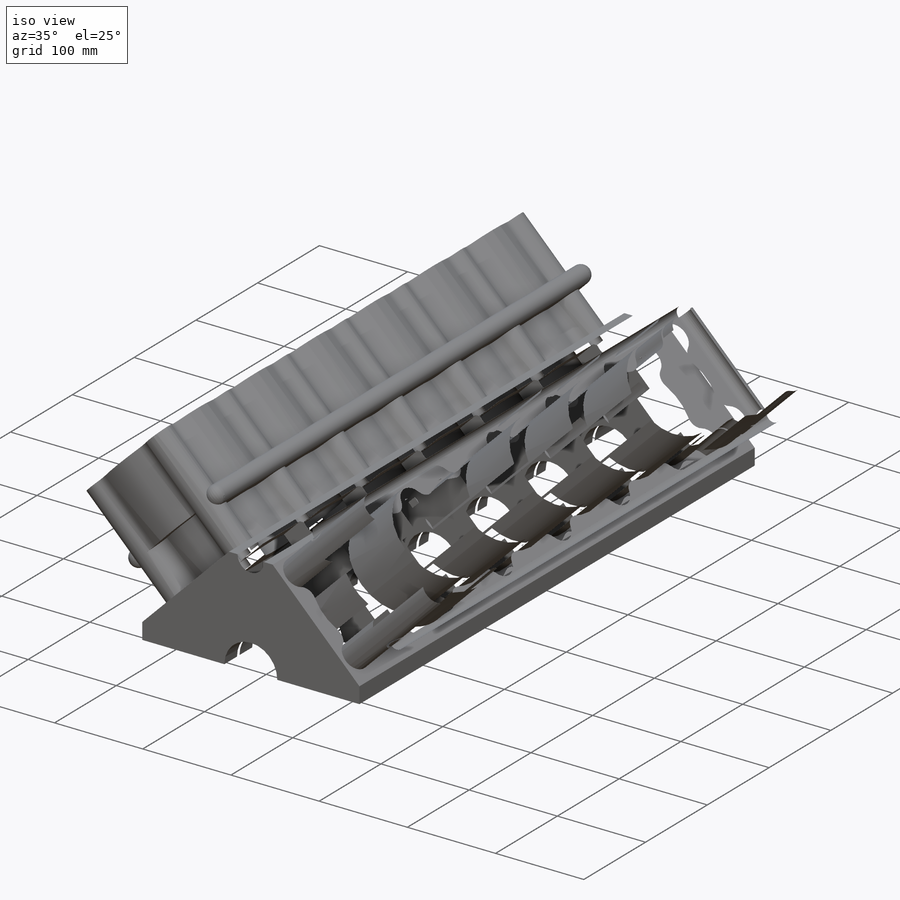
[diagram: iso view]
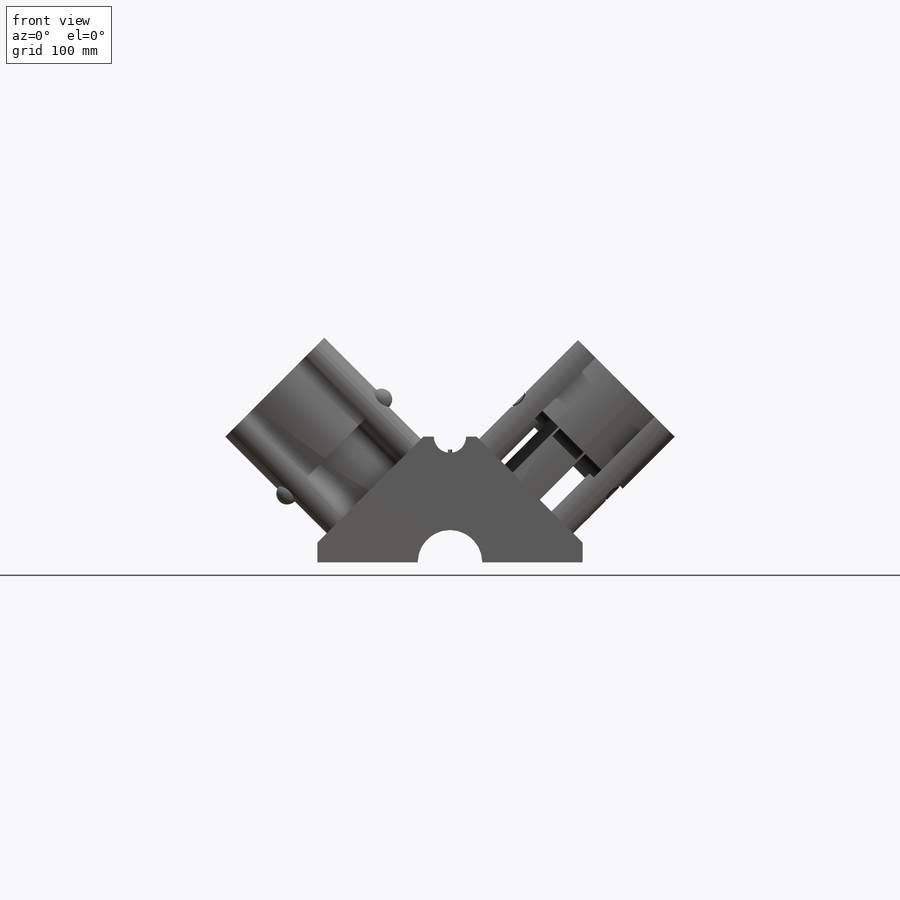
[diagram: front view]
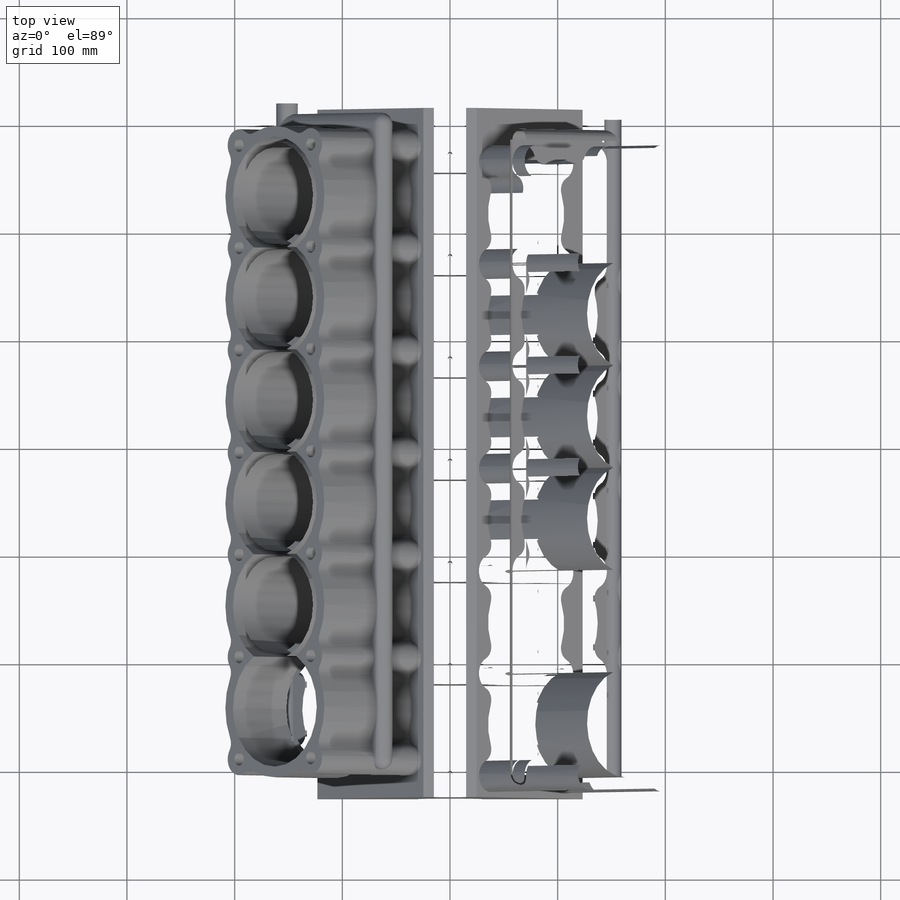
[diagram: top view]
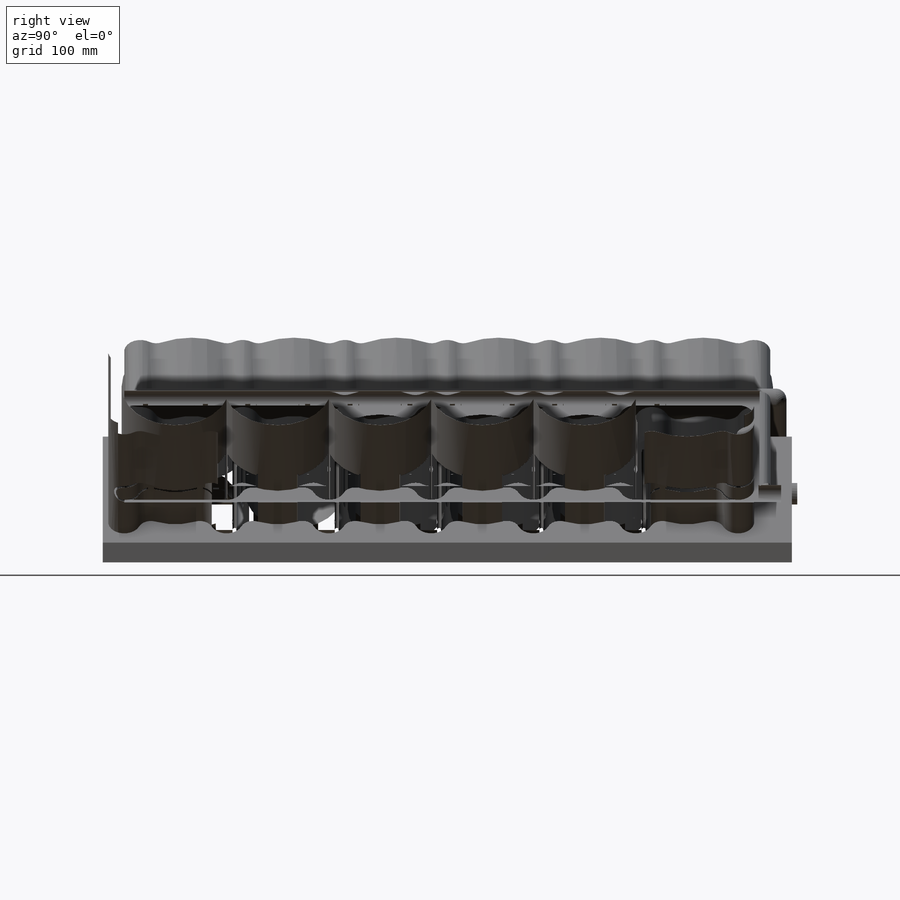
[diagram: right view]
SOLIDWORKS PART (.sldprt)
format: sldprt  version: not decoded by parser v0  size: 5,576,192 bytes
history: native  units: mm
features: sketch x39, extrude x15, cut_extrude x13, mirror x5, plane x4, sweep x2, material x1, pattern_linear x1, move_body x1, cut_revolve x1 (+11 scaffold rows collapsed)
feature tree (93):
  scaffold x11  (default folders/planes/origin — collapsed)
  material  "Material <not specified>"
  sketch  "Sketch2"
  plane  "Plane1"
  sketch  "Sketch3"  dims[c1.D1=90.0mm c1.D3=100.0mm c1.D4=130.0mm c1.D5=110.0mm c2.D4=12.0mm c2.D5=24.0mm c2.D7=10.0mm c2.D8=10.0mm c2.D2=24.0mm c3.D5=30.0mm c3.D6=130.0mm c3.D7=110.0mm c3.D8=100.0mm c3.D9=90.0mm c3.D2=142.5mm c3.D1=47.0mm c3.D3=47.0mm c4.D1=142.5mm c4.D2=47.5mm]
  extrude  "Boss-Extrude1"  Depth=130mm
  sketch  "Sketch4"
  cut_extrude  "Cut-Extrude1"  Depth=60mm
  sketch  "Sketch5"  dims[c1.D1=~14.635716mm c1.D2=~14.045971mm c2.D1=24.0mm c2.D2=55.0mm c3.D1=100.0mm c3.D2=30.0mm c3.D3=12.0mm c3.D4=~11.809196mm]
  extrude  "Boss-Extrude2"  Depth=60mm
  pattern_linear  "LPattern2"  Count1=6 Count2=1 Spacing1=95mm Spacing2=10mm
  sketch  "Sketch6"  dims[D1=45.0mm]
  cut_extrude  "Cut-Extrude3"  Depth=70mm
  sketch  "Sketch8"  dims[c1.D1=16.0mm c1.D2=10.0mm c2.D1=2.0mm c2.D3=15.0mm]
  extrude  "Boss-Extrude3"  Depth=190mm
  sketch  "Sketch9"
  sketch  "Sketch11"
  plane  "Plane2"
  mirror  "Mirror1"
  cut_extrude  "Cut-Extrude10"  Depth=10mm
  sketch  "Sketch12"
  extrude  "Boss-Extrude4"  [1 undecoded]
  sketch  "Sketch15"
  cut_extrude  "Cut-Extrude11"  Depth=337mm
  sketch  "3DSketch2"
  plane  "Plane3"
  sketch  "Sketch16"  dims[D1=10.0mm]
  sketch  "Sketch17"  dims[D1=10.0mm D2=8.0mm]
  sweep  "Sweep1"
  mirror  "Mirror2"
  plane  "Plane4"  Offset=420mm
  sketch  "Sketch18"  dims[D1=20.0mm]
  extrude  "Boss-Extrude6"  Depth=21mm
  sketch  "Sketch19"  dims[D1=~7.272815mm]
  cut_extrude  "Cut-Extrude12"  Depth=23mm
  sketch  "Sketch20"  dims[D1=10.0mm]
  sketch  "Sketch21"  dims[D1=0.0mm]
  sweep  "Sweep2"
  mirror  "Mirror3"
  mirror  "Mirror4"
  sketch  "Sketch22"
  sketch  "Sketch23"  dims[D1=0.0mm]
  extrude  "Boss-Extrude7"  Depth=10mm
  sketch  "Sketch24"  dims[D1=640.0mm]
  extrude  "Boss-Extrude8"  Depth=10mm
  sketch  "Sketch25"  dims[D1=10.0mm]
  sketch  "Sketch26"  dims[D1=10.0mm]
  extrude  "Boss-Extrude9"  Depth=225mm
  mirror  "Mirror6"
  move_body  "Body-Move/Copy1"
  sketch  "Sketch27"  dims[c1.D1=20.0mm c2.D1=5.0 c2.D2=3.0]
  extrude  "Boss-Extrude10"  [1 undecoded]
  sketch  "Sketch28"  dims[D1=0.0mm]
  extrude  "Boss-Extrude11"  Depth=215mm
  sketch  "Sketch29"
  cut_extrude  "Cut-Extrude13"  Depth=1097mm
  sketch  "Sketch30"  dims[D1=~123.137085mm D2=15.0mm D3=6.0]
  extrude  "Boss-Extrude13"  [1 undecoded]
  sketch  "Sketch31"  dims[D1=6.0]
  extrude  "Boss-Extrude14"  [1 undecoded]
  sketch  "Sketch33"
  cut_extrude  "Cut-Extrude14"  Depth=143mm
  sketch  "Sketch34"
  cut_extrude  "Cut-Extrude15"  Depth=744mm
  sketch  "Sketch35"  dims[D1=60.0mm]
  cut_extrude  "Cut-Extrude16"  Depth=744mm
  sketch  "Sketch36"
  cut_extrude  "Cut-Extrude17"  Depth=160mm
  sketch  "Sketch38"  dims[D1=30.0mm D2=26.0mm]
  extrude  "Boss-Extrude17"  Depth=640mm
  sketch  "Sketch45"
  cut_extrude  "Cut-Extrude20"  Depth=160mm
  sketch  "Sketch40"  dims[D1=24.0mm]
  cut_extrude  "Cut-Extrude18"  [1 undecoded]
  sketch  "Sketch42"  dims[c1.D1=~3.278894mm c1.D2=~5.181527mm c2.D1=6.0]
  cut_extrude  "Cut-Extrude19"  Depth=112mm
  sketch  "Sketch43"  dims[c1.D1=~4.808413mm c1.D2=~3.314419mm c2.D1=6.0]
  cut_revolve  "Cut-Revolve1"  Angle=360deg
  sketch  "Sketch44"  dims[c1.D1=5.0mm c1.D4=~9.006121mm c1.D3=50.0mm c2.D4=50.0mm c2.D1=6.0 c2.D2=2.0]
  sketch  "Sketch46"
  extrude  "Boss-Extrude18"  Depth=5.953883mm
  sketch  "Sketch47"
  extrude  "Boss-Extrude19"  Depth=3.830908mm
decode coverage: 49 of 77 modeling features carry decoded parameters
note: ~ marks probable driven/reference dimensions
note: 5 parameter values undecoded
summary: no parameter record found for 5 features
note: suppression state not decoded; provenance and decode notes live in map.json
